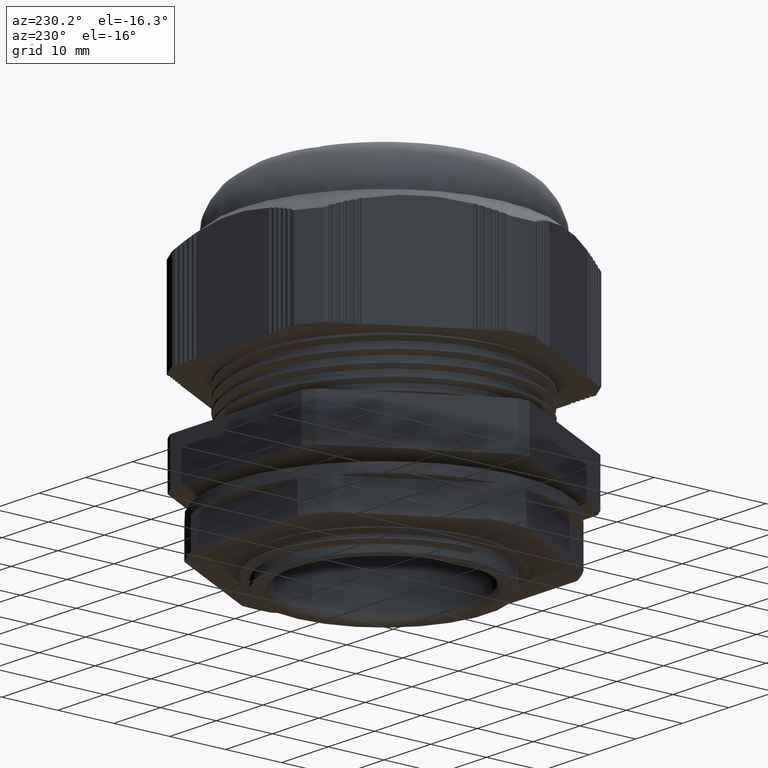
[diagram: clean part render]
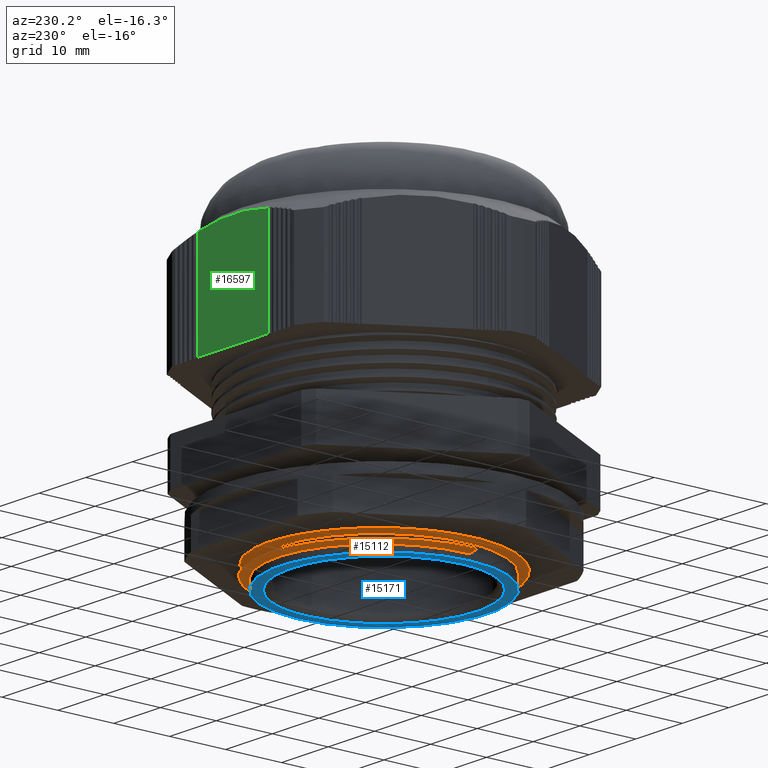
[diagram: same view with three faces highlighted in distinct colors, each labeled with its STEP entity id]
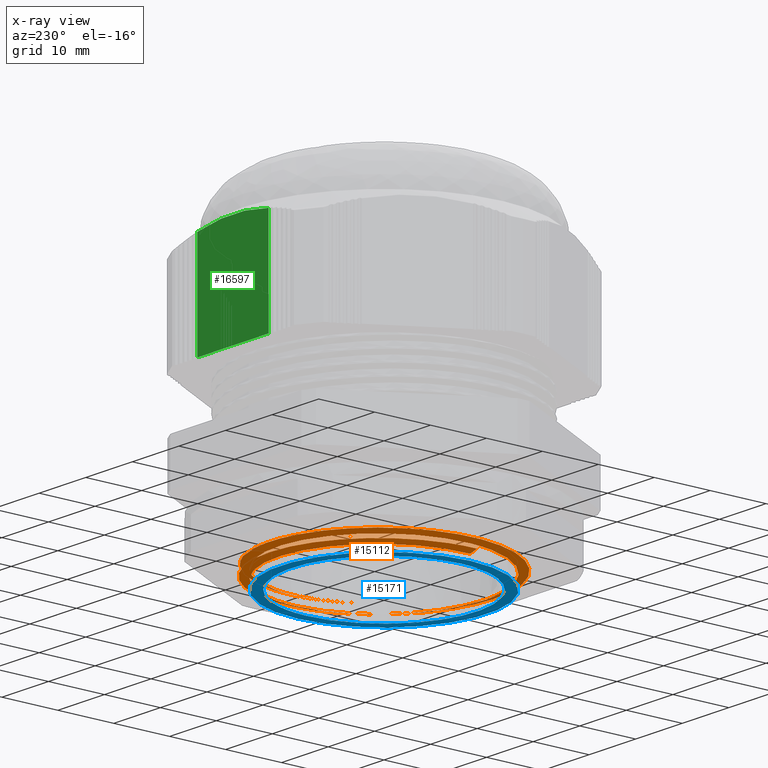
[diagram: x-ray of the same camera — body ghosted, the three highlighted faces saturated]
A machine part, auxiliary view with three faces highlighted in distinct colors.
The next image is the same camera in x-ray (body ghosted, the three faces saturated) — at least one of them is partly hidden behind the body in this view.
Their STEP definitions:

[orange] entity #15112 — the highlighted face is a freeform B-spline surface patch.
#3 = CARTESIAN_POINT ( 'NONE',  ( -20.00000000000000400, 8.284271247461902000, 5.995673788646678700 ) ) ;
#4 = CARTESIAN_POINT ( 'NONE',  ( -14.14213562373094700, -14.14213562373095500, 4.214423788646679500 ) ) ;
#5 = CARTESIAN_POINT ( 'NONE',  ( 8.284271247461900200, 20.00000000000000400, 4.870673788646679500 ) ) ;
#6 = CARTESIAN_POINT ( 'NONE',  ( 20.00000000000000400, 8.284271247461903800, 5.058173788646680400 ) ) ;
#7 = CARTESIAN_POINT ( 'NONE',  ( -14.14213562373095300, 14.14213562373094900, 6.089423788646679500 ) ) ;
#8 = CARTESIAN_POINT ( 'NONE',  ( -1.224646799147353300E-015, 20.00000000000000000, 6.276923788646679500 ) ) ;
#9 = CARTESIAN_POINT ( 'NONE',  ( 14.14213562373094900, 14.14213562373095300, 6.464423788646679500 ) ) ;
#10 = CARTESIAN_POINT ( 'NONE',  ( 3.673940397442059200E-015, -20.00000000000000000, 4.026923788646682200 ) ) ;
#11 = CARTESIAN_POINT ( 'NONE',  ( 20.00000000000000400, 8.284271247461903800, 6.558173788646680400 ) ) ;
#12 = CARTESIAN_POINT ( 'NONE',  ( 20.00000000000000000, 2.449293598294706500E-015, 5.151923788646679500 ) ) ;
#13 = CARTESIAN_POINT ( 'NONE',  ( 8.284271247461912700, -20.00000000000000400, 8.433173788646682200 ) ) ;
#14 = CARTESIAN_POINT ( 'NONE',  ( 3.673940397442059200E-015, -20.00000000000000000, 8.526923788646685800 ) ) ;
#15 = CARTESIAN_POINT ( 'NONE',  ( 8.284271247461912700, -20.00000000000000400, 5.433173788646678700 ) ) ;
#16 = CARTESIAN_POINT ( 'NONE',  ( -8.284271247461905600, -20.00000000000000400, 5.620673788646679500 ) ) ;
#17 = CARTESIAN_POINT ( 'NONE',  ( -20.00000000000000000, 0.0000000000000000000, 7.401923788646679500 ) ) ;
#18 = CARTESIAN_POINT ( 'NONE',  ( -20.00000000000000000, 0.0000000000000000000, 8.901923788646678700 ) ) ;
#19 = CARTESIAN_POINT ( 'NONE',  ( -14.14213562373094700, -14.14213562373095500, 8.714423788646680400 ) ) ;
#20 = CARTESIAN_POINT ( 'NONE',  ( 3.673940397442059200E-015, -20.00000000000000000, 7.026923788646682200 ) ) ;
#21 = CARTESIAN_POINT ( 'NONE',  ( 20.00000000000000000, 2.449293598294706500E-015, 6.651923788646679500 ) ) ;
#22 = CARTESIAN_POINT ( 'NONE',  ( -20.00000000000000400, -8.284271247461914500, 7.308173788646680400 ) ) ;
#23 = CARTESIAN_POINT ( 'NONE',  ( -20.00000000000000400, 8.284271247461902000, 8.995673788646678700 ) ) ;
#24 = CARTESIAN_POINT ( 'NONE',  ( -14.14213562373094700, -14.14213562373095500, 5.714423788646679500 ) ) ;
#25 = CARTESIAN_POINT ( 'NONE',  ( 20.00000000000000400, 8.284271247461903800, 9.558173788646678700 ) ) ;
#26 = CARTESIAN_POINT ( 'NONE',  ( 20.00000000000000000, 2.449293598294706500E-015, 9.651923788646678700 ) ) ;
#27 = CARTESIAN_POINT ( 'NONE',  ( -14.14213562373094700, -14.14213562373095500, 7.214423788646679500 ) ) ;
#28 = CARTESIAN_POINT ( 'NONE',  ( 14.14213562373095500, -14.14213562373094900, 9.839423788646678700 ) ) ;
#29 = CARTESIAN_POINT ( 'NONE',  ( -20.00000000000000400, 8.284271247461902000, 7.495673788646680400 ) ) ;
#30 = CARTESIAN_POINT ( 'NONE',  ( -20.00000000000000000, 0.0000000000000000000, 4.401923788646679500 ) ) ;
#31 = CARTESIAN_POINT ( 'NONE',  ( -20.00000000000000000, 0.0000000000000000000, 5.901923788646679500 ) ) ;
#32 = CARTESIAN_POINT ( 'NONE',  ( 8.284271247461900200, 20.00000000000000400, 6.370673788646679500 ) ) ;
#33 = CARTESIAN_POINT ( 'NONE',  ( 20.00000000000000400, -8.284271247461896700, 6.745673788646680400 ) ) ;
#34 = CARTESIAN_POINT ( 'NONE',  ( 20.00000000000000400, -8.284271247461896700, 5.245673788646679500 ) ) ;
#35 = CARTESIAN_POINT ( 'NONE',  ( -8.284271247461902000, 20.00000000000000400, 7.683173788646681300 ) ) ;
#36 = CARTESIAN_POINT ( 'NONE',  ( -8.284271247461905600, -20.00000000000000400, 4.120673788646678700 ) ) ;
#37 = CARTESIAN_POINT ( 'NONE',  ( -8.284271247461905600, -20.00000000000000400, 8.620673788646680400 ) ) ;
#38 = CARTESIAN_POINT ( 'NONE',  ( -20.00000000000000400, -8.284271247461914500, 4.308173788646681300 ) ) ;
#39 = CARTESIAN_POINT ( 'NONE',  ( -14.14213562373095300, 14.14213562373094900, 4.589423788646679500 ) ) ;
#40 = CARTESIAN_POINT ( 'NONE',  ( -14.14213562373095300, 14.14213562373094900, 9.089423788646678700 ) ) ;
#41 = CARTESIAN_POINT ( 'NONE',  ( 8.284271247461912700, -20.00000000000000400, 9.933173788646678700 ) ) ;
#42 = CARTESIAN_POINT ( 'NONE',  ( 3.673940397442059200E-015, -20.00000000000000000, 5.526923788646679500 ) ) ;
#43 = CARTESIAN_POINT ( 'NONE',  ( 20.00000000000000400, 8.284271247461903800, 8.058173788646682200 ) ) ;
#44 = CARTESIAN_POINT ( 'NONE',  ( 20.00000000000000000, 2.449293598294706500E-015, 8.151923788646678700 ) ) ;
#45 = CARTESIAN_POINT ( 'NONE',  ( -8.284271247461902000, 20.00000000000000400, 9.183173788646676900 ) ) ;
#46 = CARTESIAN_POINT ( 'NONE',  ( 8.284271247461912700, -20.00000000000000400, 6.933173788646680400 ) ) ;
#47 = CARTESIAN_POINT ( 'NONE',  ( 14.14213562373094900, 14.14213562373095300, 7.964423788646679500 ) ) ;
#48 = CARTESIAN_POINT ( 'NONE',  ( 20.00000000000000400, -8.284271247461896700, 8.245673788646678700 ) ) ;
#49 = CARTESIAN_POINT ( 'NONE',  ( 14.14213562373094900, 14.14213562373095300, 4.964423788646680400 ) ) ;
#50 = CARTESIAN_POINT ( 'NONE',  ( -20.00000000000000400, -8.284271247461914500, 5.808173788646679500 ) ) ;
#51 = CARTESIAN_POINT ( 'NONE',  ( -20.00000000000000400, 8.284271247461902000, 4.495673788646678700 ) ) ;
#52 = CARTESIAN_POINT ( 'NONE',  ( -8.284271247461905600, -20.00000000000000400, 7.120673788646683100 ) ) ;
#53 = CARTESIAN_POINT ( 'NONE',  ( 14.14213562373095500, -14.14213562373094900, 8.339423788646678700 ) ) ;
#54 = CARTESIAN_POINT ( 'NONE',  ( -8.284271247461902000, 20.00000000000000400, 6.183173788646681300 ) ) ;
#55 = CARTESIAN_POINT ( 'NONE',  ( -1.224646799147353300E-015, 20.00000000000000000, 7.776923788646679500 ) ) ;
#56 = CARTESIAN_POINT ( 'NONE',  ( -20.00000000000000400, -8.284271247461914500, 8.808173788646678700 ) ) ;
#57 = CARTESIAN_POINT ( 'NONE',  ( -8.284271247461902000, 20.00000000000000400, 4.683173788646679500 ) ) ;
#58 = CARTESIAN_POINT ( 'NONE',  ( -1.224646799147353300E-015, 20.00000000000000000, 4.776923788646679500 ) ) ;
#59 = CARTESIAN_POINT ( 'NONE',  ( 14.14213562373095500, -14.14213562373094900, 5.339423788646679500 ) ) ;
#60 = CARTESIAN_POINT ( 'NONE',  ( 14.14213562373095500, -14.14213562373094900, 6.839423788646679500 ) ) ;
#61 = CARTESIAN_POINT ( 'NONE',  ( -1.224646799147353300E-015, 20.00000000000000000, 9.276923788646678700 ) ) ;
#62 = CARTESIAN_POINT ( 'NONE',  ( 8.284271247461900200, 20.00000000000000400, 7.870673788646681300 ) ) ;
#63 = CARTESIAN_POINT ( 'NONE',  ( -14.14213562373095300, 14.14213562373094900, 7.589423788646679500 ) ) ;
#64 = CARTESIAN_POINT ( 'NONE',  ( 8.284271247461900200, 20.00000000000000400, 9.370673788646678700 ) ) ;
#65 = CARTESIAN_POINT ( 'NONE',  ( 14.14213562373094900, 14.14213562373095300, 9.464423788646678700 ) ) ;
#66 = CARTESIAN_POINT ( 'NONE',  ( 20.00000000000000400, -8.284271247461896700, 9.745673788646678700 ) ) ;
#604 = CARTESIAN_POINT ( 'NONE',  ( -18.50000000000000000, 0.0000000000000000000, 2.500000000000000000 ) ) ;
#620 = CARTESIAN_POINT ( 'NONE',  ( -18.49999999999999600, 0.0000000000000000000, 1.000000000000000400 ) ) ;
#685 = CARTESIAN_POINT ( 'NONE',  ( 18.50000000000000000, 7.547849486294601300E-012, 3.249999999999909800 ) ) ;
#710 = CARTESIAN_POINT ( 'NONE',  ( 18.50000000000000000, 2.265596578422603400E-015, 1.750000000000000000 ) ) ;
#794 = CARTESIAN_POINT ( 'NONE',  ( 15.68612446497232700, -9.807930427434556000, 3.384251592187931900 ) ) ;
#889 = CARTESIAN_POINT ( 'NONE',  ( 8.666006333860417900, 18.02499193402014700, 3.384251592187914600 ) ) ;
#914 = CARTESIAN_POINT ( 'NONE',  ( -20.00000000000000000, 0.0000000000000000000, 1.401923788646679800 ) ) ;
#1245 = CARTESIAN_POINT ( 'NONE',  ( 3.673940397442059200E-015, -20.00000000000000000, 10.02692378864667900 ) ) ;
#1254 = ORIENTED_EDGE ( 'NONE', *, *, #8288, .F. ) ;
#1289 = ORIENTED_EDGE ( 'NONE', *, *, #9871, .F. ) ;
#1305 = ORIENTED_EDGE ( 'NONE', *, *, #9901, .F. ) ;
#1342 = ORIENTED_EDGE ( 'NONE', *, *, #9877, .F. ) ;
#1345 = ORIENTED_EDGE ( 'NONE', *, *, #8329, .F. ) ;
#1429 = ORIENTED_EDGE ( 'NONE', *, *, #8280, .T. ) ;
#1454 = CARTESIAN_POINT ( 'NONE',  ( -8.284271247461905600, -20.00000000000000400, 10.12067378864667900 ) ) ;
#1465 = ORIENTED_EDGE ( 'NONE', *, *, #8311, .F. ) ;
#1527 = CARTESIAN_POINT ( 'NONE',  ( -14.14213562373094700, -14.14213562373095500, 10.21442378864667900 ) ) ;
#1529 = CARTESIAN_POINT ( 'NONE',  ( -20.00000000000000400, -8.284271247461914500, 10.30817378864668000 ) ) ;
#1545 = CARTESIAN_POINT ( 'NONE',  ( -20.00000000000000000, 0.0000000000000000000, 10.40192378864668400 ) ) ;
#1628 = CARTESIAN_POINT ( 'NONE',  ( -20.00000000000000400, 8.284271247461902000, 1.495673788646679500 ) ) ;
#1634 = CARTESIAN_POINT ( 'NONE',  ( -14.14213562373095300, 14.14213562373094900, 1.589423788646679300 ) ) ;
#1637 = CARTESIAN_POINT ( 'NONE',  ( 14.14213562373095500, -14.14213562373094900, 2.339423788646679500 ) ) ;
#1639 = CARTESIAN_POINT ( 'NONE',  ( -20.00000000000000400, 8.284271247461902000, 2.995673788646681300 ) ) ;
#1642 = CARTESIAN_POINT ( 'NONE',  ( 14.14213562373094900, 14.14213562373095300, 3.464423788646679500 ) ) ;
#1652 = CARTESIAN_POINT ( 'NONE',  ( 8.284271247461912700, -20.00000000000000400, 2.433173788646679500 ) ) ;
#1658 = CARTESIAN_POINT ( 'NONE',  ( 20.00000000000000400, 8.284271247461903800, 3.558173788646679100 ) ) ;
#1660 = CARTESIAN_POINT ( 'NONE',  ( 20.00000000000000400, -8.284271247461896700, 3.745673788646679100 ) ) ;
#1662 = CARTESIAN_POINT ( 'NONE',  ( 8.284271247461900200, 20.00000000000000400, 3.370673788646679500 ) ) ;
#1665 = CARTESIAN_POINT ( 'NONE',  ( -8.284271247461905600, -20.00000000000000400, 2.620673788646679500 ) ) ;
#1670 = CARTESIAN_POINT ( 'NONE',  ( -8.284271247461902000, 20.00000000000000400, 1.683173788646679800 ) ) ;
#1676 = CARTESIAN_POINT ( 'NONE',  ( 14.14213562373095500, -14.14213562373094900, 3.839423788646679500 ) ) ;
#1678 = CARTESIAN_POINT ( 'NONE',  ( 20.00000000000000400, 8.284271247461903800, 2.058173788646679500 ) ) ;
#1686 = FACE_OUTER_BOUND ( 'NONE', #16886, .T. ) ;
#1690 = CARTESIAN_POINT ( 'NONE',  ( -20.00000000000000000, 0.0000000000000000000, 1.401923788646679800 ) ) ;
#1692 = CARTESIAN_POINT ( 'NONE',  ( 3.673940397442059200E-015, -20.00000000000000000, 2.526923788646679500 ) ) ;
#1694 = CARTESIAN_POINT ( 'NONE',  ( -14.14213562373094700, -14.14213562373095500, 2.714423788646679500 ) ) ;
#1695 = CARTESIAN_POINT ( 'NONE',  ( -14.14213562373095300, 14.14213562373094900, 3.089423788646679100 ) ) ;
#1699 = CARTESIAN_POINT ( 'NONE',  ( 14.14213562373094900, 14.14213562373095300, 1.964423788646679500 ) ) ;
#1705 = CARTESIAN_POINT ( 'NONE',  ( -20.00000000000000400, -8.284271247461914500, 2.808173788646679500 ) ) ;
#1711 = CARTESIAN_POINT ( 'NONE',  ( -8.284271247461902000, 20.00000000000000400, 3.183173788646679100 ) ) ;
#1713 = CARTESIAN_POINT ( 'NONE',  ( -20.00000000000000000, 0.0000000000000000000, 2.901923788646679500 ) ) ;
#1714 = CARTESIAN_POINT ( 'NONE',  ( -1.224646799147353300E-015, 20.00000000000000000, 3.276923788646680900 ) ) ;
#1716 = CARTESIAN_POINT ( 'NONE',  ( -1.224646799147353300E-015, 20.00000000000000000, 1.776923788646679300 ) ) ;
#1721 = CARTESIAN_POINT ( 'NONE',  ( 20.00000000000000000, 2.449293598294706500E-015, 2.151923788646679100 ) ) ;
#1722 = CARTESIAN_POINT ( 'NONE',  ( 20.00000000000000000, 2.449293598294706500E-015, 3.651923788646679500 ) ) ;
#1724 = CARTESIAN_POINT ( 'NONE',  ( 8.284271247461912700, -20.00000000000000400, 3.933173788646679100 ) ) ;
#1732 = CARTESIAN_POINT ( 'NONE',  ( 8.284271247461900200, 20.00000000000000400, 1.870673788646680400 ) ) ;
#1733 = CARTESIAN_POINT ( 'NONE',  ( 20.00000000000000400, -8.284271247461896700, 2.245673788646679100 ) ) ;
#1825 = CARTESIAN_POINT ( 'NONE',  ( -8.284271247461902000, 20.00000000000000400, 12.18317378864668200 ) ) ;
#1826 = CARTESIAN_POINT ( 'NONE',  ( -1.224646799147353300E-015, 20.00000000000000000, 12.27692378864668000 ) ) ;
#1827 = CARTESIAN_POINT ( 'NONE',  ( 14.14213562373094900, 14.14213562373095300, 12.46442378864668400 ) ) ;
#1828 = CARTESIAN_POINT ( 'NONE',  ( 20.00000000000000000, 2.449293598294706500E-015, 12.65192378864667900 ) ) ;
#1829 = CARTESIAN_POINT ( 'NONE',  ( 8.284271247461900200, 20.00000000000000400, 10.87067378864668000 ) ) ;
#1830 = CARTESIAN_POINT ( 'NONE',  ( -7.662950903902259200, 18.50000000000001800, 2.781250000000000000 ) ) ;
#1831 = CARTESIAN_POINT ( 'NONE',  ( 14.14213562373095500, -14.14213562373094900, 11.33942378864668000 ) ) ;
#1832 = CARTESIAN_POINT ( 'NONE',  ( -18.50000000000001800, 7.662950903902258300, 1.093750000000000200 ) ) ;
#1833 = CARTESIAN_POINT ( 'NONE',  ( 13.08147545195112800, 13.08147545195113000, 1.562500000000000000 ) ) ;
#1834 = CARTESIAN_POINT ( 'NONE',  ( 7.662950903902271600, -18.50000000000001400, 3.531250000000000000 ) ) ;
#1835 = CARTESIAN_POINT ( 'NONE',  ( 13.08147545195112800, 13.08147545195113000, 3.062500000000000000 ) ) ;
#1836 = CARTESIAN_POINT ( 'NONE',  ( 3.398394867633906300E-015, -18.50000000000000000, 3.625000000000000000 ) ) ;
#1837 = CARTESIAN_POINT ( 'NONE',  ( 13.08147545195113200, -13.08147545195112800, 1.937500000000000000 ) ) ;
#1838 = CARTESIAN_POINT ( 'NONE',  ( -7.662950903902262700, -18.50000000000001400, 3.718750000000000400 ) ) ;
#1839 = CARTESIAN_POINT ( 'NONE',  ( -13.08147545195112500, -13.08147545195113200, 3.812500000000000000 ) ) ;
#1840 = CARTESIAN_POINT ( 'NONE',  ( 3.673940397442059200E-015, -20.00000000000000000, 11.52692378864668000 ) ) ;
#1841 = CARTESIAN_POINT ( 'NONE',  ( -18.50000000000000000, 0.0000000000000000000, 4.000000000000000000 ) ) ;
#1842 = CARTESIAN_POINT ( 'NONE',  ( -18.50000000000001800, 7.662950903902258300, 4.093750000000000000 ) ) ;
#1843 = CARTESIAN_POINT ( 'NONE',  ( -13.08147545195113000, 13.08147545195112800, 4.187500000000000000 ) ) ;
#1844 = CARTESIAN_POINT ( 'NONE',  ( -7.662950903902262700, -18.50000000000001400, 2.218750000000000400 ) ) ;
#1845 = CARTESIAN_POINT ( 'NONE',  ( -7.662950903902259200, 18.50000000000001800, 4.281250000000001800 ) ) ;
#1846 = CARTESIAN_POINT ( 'NONE',  ( -20.00000000000000000, 0.0000000000000000000, 11.90192378864668000 ) ) ;
#1847 = CARTESIAN_POINT ( 'NONE',  ( -7.662950903902259200, 18.50000000000001800, 1.281250000000000200 ) ) ;
#1848 = CARTESIAN_POINT ( 'NONE',  ( 18.50000000000001800, 7.662950903902261000, 3.156250000000000400 ) ) ;
#1849 = CARTESIAN_POINT ( 'NONE',  ( 18.50000000000000000, 2.265596578422603400E-015, 3.250000000000001800 ) ) ;
#1850 = CARTESIAN_POINT ( 'NONE',  ( -13.08147545195113000, 13.08147545195112800, 2.687500000000000000 ) ) ;
#1851 = CARTESIAN_POINT ( 'NONE',  ( -18.50000000000001400, -7.662950903902271600, 3.906250000000000000 ) ) ;
#1852 = CARTESIAN_POINT ( 'NONE',  ( -14.14213562373095300, 14.14213562373094900, 12.08942378864668000 ) ) ;
#1853 = CARTESIAN_POINT ( 'NONE',  ( 7.662950903902258300, 18.50000000000001800, 4.468750000000003600 ) ) ;
#1854 = CARTESIAN_POINT ( 'NONE',  ( 20.00000000000000400, 8.284271247461903800, 12.55817378864668200 ) ) ;
#1855 = CARTESIAN_POINT ( 'NONE',  ( 13.08147545195112800, 13.08147545195113000, 4.562500000000000900 ) ) ;
#1856 = CARTESIAN_POINT ( 'NONE',  ( 20.00000000000000400, -8.284271247461896700, 11.24567378864668000 ) ) ;
#1857 = CARTESIAN_POINT ( 'NONE',  ( -14.14213562373094700, -14.14213562373095500, 11.71442378864668000 ) ) ;
#1858 = CARTESIAN_POINT ( 'NONE',  ( 18.50000000000001800, 7.662950903902261000, 1.656250000000000200 ) ) ;
#1859 = CARTESIAN_POINT ( 'NONE',  ( 18.50000000000001800, 7.662950903902261000, 4.656250000000000000 ) ) ;
#1860 = CARTESIAN_POINT ( 'NONE',  ( 3.398394867633906300E-015, -18.50000000000000000, 2.125000000000000000 ) ) ;
#1861 = CARTESIAN_POINT ( 'NONE',  ( -1.132798289211301700E-015, 18.50000000000000000, 4.375000000000000000 ) ) ;
#1862 = CARTESIAN_POINT ( 'NONE',  ( 18.50000000000000000, 2.265596578422603400E-015, 4.750000000000000000 ) ) ;
#1863 = CARTESIAN_POINT ( 'NONE',  ( 20.00000000000000400, 8.284271247461903800, 11.05817378864668000 ) ) ;
#1864 = CARTESIAN_POINT ( 'NONE',  ( 18.50000000000001800, -7.662950903902258300, 4.843750000000000000 ) ) ;
#1865 = CARTESIAN_POINT ( 'NONE',  ( 13.08147545195113200, -13.08147545195112800, 4.937500000000000000 ) ) ;
#1866 = CARTESIAN_POINT ( 'NONE',  ( -1.132798289211301700E-015, 18.50000000000000000, 1.375000000000000000 ) ) ;
#1867 = CARTESIAN_POINT ( 'NONE',  ( -13.08147545195112500, -13.08147545195113200, 2.312500000000000400 ) ) ;
#1868 = CARTESIAN_POINT ( 'NONE',  ( -18.50000000000001400, -7.662950903902271600, 2.406250000000000400 ) ) ;
#1869 = CARTESIAN_POINT ( 'NONE',  ( -18.50000000000000000, 0.0000000000000000000, 2.500000000000000000 ) ) ;
#1870 = CARTESIAN_POINT ( 'NONE',  ( 7.662950903902258300, 18.50000000000001800, 2.968750000000000000 ) ) ;
#1871 = CARTESIAN_POINT ( 'NONE',  ( -20.00000000000000400, -8.284271247461914500, 11.80817378864668200 ) ) ;
#1872 = CARTESIAN_POINT ( 'NONE',  ( -20.00000000000000400, 8.284271247461902000, 11.99567378864668000 ) ) ;
#1873 = CARTESIAN_POINT ( 'NONE',  ( 18.50000000000000000, 2.265596578422603400E-015, 1.750000000000000000 ) ) ;
#1874 = CARTESIAN_POINT ( 'NONE',  ( -8.284271247461905600, -20.00000000000000400, 11.62067378864668000 ) ) ;
#1875 = CARTESIAN_POINT ( 'NONE',  ( 7.662950903902271600, -18.50000000000001400, 2.031250000000000000 ) ) ;
#1876 = CARTESIAN_POINT ( 'NONE',  ( 14.14213562373094900, 14.14213562373095300, 10.96442378864668000 ) ) ;
#1877 = CARTESIAN_POINT ( 'NONE',  ( 8.284271247461900200, 20.00000000000000400, 12.37067378864668000 ) ) ;
#1878 = CARTESIAN_POINT ( 'NONE',  ( -18.50000000000000000, 0.0000000000000000000, 1.000000000000000000 ) ) ;
#1879 = CARTESIAN_POINT ( 'NONE',  ( 8.284271247461912700, -20.00000000000000400, 11.43317378864668000 ) ) ;
#1880 = CARTESIAN_POINT ( 'NONE',  ( 18.50000000000001800, -7.662950903902258300, 1.843749999999999800 ) ) ;
#1881 = CARTESIAN_POINT ( 'NONE',  ( -1.132798289211301700E-015, 18.50000000000000000, 2.875000000000000000 ) ) ;
#1882 = CARTESIAN_POINT ( 'NONE',  ( -18.50000000000001800, 7.662950903902258300, 2.593750000000000900 ) ) ;
#1883 = CARTESIAN_POINT ( 'NONE',  ( -1.224646799147353300E-015, 20.00000000000000000, 10.77692378864668000 ) ) ;
#1884 = CARTESIAN_POINT ( 'NONE',  ( -13.08147545195113000, 13.08147545195112800, 1.187500000000000000 ) ) ;
#1885 = CARTESIAN_POINT ( 'NONE',  ( 18.50000000000001800, -7.662950903902258300, 3.343750000000000400 ) ) ;
#1886 = CARTESIAN_POINT ( 'NONE',  ( 20.00000000000000000, 2.449293598294706500E-015, 11.15192378864668000 ) ) ;
#1887 = CARTESIAN_POINT ( 'NONE',  ( 7.662950903902258300, 18.50000000000001800, 1.468750000000000200 ) ) ;
#1888 = CARTESIAN_POINT ( 'NONE',  ( 13.08147545195113200, -13.08147545195112800, 3.437500000000000000 ) ) ;
#1889 = CARTESIAN_POINT ( 'NONE',  ( -18.50000000000001800, 7.662950903902258300, 10.09374999999999600 ) ) ;
#1890 = CARTESIAN_POINT ( 'NONE',  ( -13.08147545195113000, 13.08147545195112800, 10.18749999999999800 ) ) ;
#1891 = CARTESIAN_POINT ( 'NONE',  ( 18.50000000000000000, 2.265596578422603400E-015, 6.250000000000000000 ) ) ;
#1892 = CARTESIAN_POINT ( 'NONE',  ( -18.50000000000001400, -7.662950903902271600, 8.406250000000001800 ) ) ;
#1893 = CARTESIAN_POINT ( 'NONE',  ( -1.132798289211301700E-015, 18.50000000000000000, 8.875000000000003600 ) ) ;
#1894 = CARTESIAN_POINT ( 'NONE',  ( 7.662950903902258300, 18.50000000000001800, 8.968750000000000000 ) ) ;
#1895 = CARTESIAN_POINT ( 'NONE',  ( -18.50000000000001400, -7.662950903902271600, 5.406250000000000900 ) ) ;
#1896 = CARTESIAN_POINT ( 'NONE',  ( -7.662950903902259200, 18.50000000000001800, 10.28124999999999800 ) ) ;
#1897 = CARTESIAN_POINT ( 'NONE',  ( 3.398394867633906300E-015, -18.50000000000000000, 6.625000000000000000 ) ) ;
#1898 = CARTESIAN_POINT ( 'NONE',  ( 13.08147545195112800, 13.08147545195113000, 6.062500000000000000 ) ) ;
#1899 = CARTESIAN_POINT ( 'NONE',  ( 7.662950903902258300, 18.50000000000001800, 10.46874999999999800 ) ) ;
#1900 = CARTESIAN_POINT ( 'NONE',  ( 18.50000000000001800, 7.662950903902261000, 9.156250000000000000 ) ) ;
#1901 = CARTESIAN_POINT ( 'NONE',  ( -7.662950903902262700, -18.50000000000001400, 6.718749999999999100 ) ) ;
#1902 = CARTESIAN_POINT ( 'NONE',  ( 18.50000000000001800, 7.662950903902261000, 7.656249999999999100 ) ) ;
#1903 = CARTESIAN_POINT ( 'NONE',  ( -18.50000000000001800, 7.662950903902258300, 8.593750000000000000 ) ) ;
#1904 = CARTESIAN_POINT ( 'NONE',  ( -18.50000000000001800, 7.662950903902258300, 5.593749999999999100 ) ) ;
#1905 = CARTESIAN_POINT ( 'NONE',  ( 13.08147545195112800, 13.08147545195113000, 10.56249999999999800 ) ) ;
#1906 = CARTESIAN_POINT ( 'NONE',  ( 7.662950903902271600, -18.50000000000001400, 8.031250000000000000 ) ) ;
#1907 = CARTESIAN_POINT ( 'NONE',  ( 18.50000000000001800, 7.662950903902261000, 10.65625000000000000 ) ) ;
#1908 = CARTESIAN_POINT ( 'NONE',  ( -13.08147545195113000, 13.08147545195112800, 7.187500000000000000 ) ) ;
#1909 = CARTESIAN_POINT ( 'NONE',  ( -7.662950903902262700, -18.50000000000001400, 9.718750000000007100 ) ) ;
#1910 = CARTESIAN_POINT ( 'NONE',  ( -1.132798289211301700E-015, 18.50000000000000000, 7.375000000000001800 ) ) ;
#1911 = CARTESIAN_POINT ( 'NONE',  ( -13.08147545195112500, -13.08147545195113200, 6.812500000000000000 ) ) ;
#1912 = CARTESIAN_POINT ( 'NONE',  ( 18.50000000000000000, 2.265596578422603400E-015, 10.75000000000000000 ) ) ;
#1913 = CARTESIAN_POINT ( 'NONE',  ( 13.08147545195113200, -13.08147545195112800, 6.437500000000003600 ) ) ;
#1914 = CARTESIAN_POINT ( 'NONE',  ( -1.132798289211301700E-015, 18.50000000000000000, 10.37499999999999800 ) ) ;
#1915 = CARTESIAN_POINT ( 'NONE',  ( 18.50000000000001800, -7.662950903902258300, 10.84374999999999800 ) ) ;
#1916 = CARTESIAN_POINT ( 'NONE',  ( -13.08147545195112500, -13.08147545195113200, 9.812500000000001800 ) ) ;
#1917 = CARTESIAN_POINT ( 'NONE',  ( 13.08147545195113200, -13.08147545195112800, 10.93750000000000500 ) ) ;
#1918 = CARTESIAN_POINT ( 'NONE',  ( -18.50000000000000000, 0.0000000000000000000, 8.500000000000000000 ) ) ;
#1919 = CARTESIAN_POINT ( 'NONE',  ( -7.662950903902259200, 18.50000000000001800, 7.281250000000000000 ) ) ;
#1920 = CARTESIAN_POINT ( 'NONE',  ( -13.08147545195112500, -13.08147545195113200, 5.312500000000000000 ) ) ;
#1921 = CARTESIAN_POINT ( 'NONE',  ( -7.662950903902259200, 18.50000000000001800, 5.781249999999999100 ) ) ;
#1922 = CARTESIAN_POINT ( 'NONE',  ( 18.50000000000001800, -7.662950903902258300, 6.343750000000000900 ) ) ;
#1923 = CARTESIAN_POINT ( 'NONE',  ( 13.08147545195113200, -13.08147545195112800, 7.937500000000000000 ) ) ;
#1924 = CARTESIAN_POINT ( 'NONE',  ( 18.50000000000001800, 7.662950903902261000, 6.156250000000000000 ) ) ;
#1925 = CARTESIAN_POINT ( 'NONE',  ( -18.50000000000001400, -7.662950903902271600, 9.906250000000001800 ) ) ;
#1926 = CARTESIAN_POINT ( 'NONE',  ( 7.662950903902271600, -18.50000000000001400, 9.531250000000001800 ) ) ;
#1927 = CARTESIAN_POINT ( 'NONE',  ( 3.398394867633906300E-015, -18.50000000000000000, 5.125000000000000000 ) ) ;
#1928 = CARTESIAN_POINT ( 'NONE',  ( -7.662950903902259200, 18.50000000000001800, 8.781250000000007100 ) ) ;
#1929 = CARTESIAN_POINT ( 'NONE',  ( 7.662950903902271600, -18.50000000000001400, 6.531250000000000000 ) ) ;
#1930 = CARTESIAN_POINT ( 'NONE',  ( 13.08147545195113200, -13.08147545195112800, 9.437500000000001800 ) ) ;
#1931 = CARTESIAN_POINT ( 'NONE',  ( 18.50000000000000000, 2.265596578422603400E-015, 9.250000000000001800 ) ) ;
#1932 = CARTESIAN_POINT ( 'NONE',  ( 3.398394867633906300E-015, -18.50000000000000000, 9.625000000000001800 ) ) ;
#1933 = CARTESIAN_POINT ( 'NONE',  ( -18.50000000000000000, 0.0000000000000000000, 10.00000000000000200 ) ) ;
#1934 = CARTESIAN_POINT ( 'NONE',  ( 18.50000000000000000, 2.265596578422603400E-015, 7.750000000000000000 ) ) ;
#1935 = CARTESIAN_POINT ( 'NONE',  ( -1.132798289211301700E-015, 18.50000000000000000, 5.875000000000000000 ) ) ;
#1936 = CARTESIAN_POINT ( 'NONE',  ( -18.50000000000000000, 0.0000000000000000000, 7.000000000000000000 ) ) ;
#1937 = CARTESIAN_POINT ( 'NONE',  ( 3.398394867633906300E-015, -18.50000000000000000, 8.125000000000000000 ) ) ;
#1938 = CARTESIAN_POINT ( 'NONE',  ( -13.08147545195113000, 13.08147545195112800, 5.687500000000000000 ) ) ;
#1939 = CARTESIAN_POINT ( 'NONE',  ( -13.08147545195113000, 13.08147545195112800, 8.687500000000000000 ) ) ;
#1940 = CARTESIAN_POINT ( 'NONE',  ( 7.662950903902271600, -18.50000000000001400, 5.031250000000000000 ) ) ;
#1941 = CARTESIAN_POINT ( 'NONE',  ( -18.50000000000001800, 7.662950903902258300, 7.093750000000000000 ) ) ;
#1942 = CARTESIAN_POINT ( 'NONE',  ( 18.50000000000001800, -7.662950903902258300, 7.843750000000000000 ) ) ;
#1943 = CARTESIAN_POINT ( 'NONE',  ( -18.50000000000000000, 0.0000000000000000000, 5.500000000000003600 ) ) ;
#1944 = CARTESIAN_POINT ( 'NONE',  ( -18.50000000000001400, -7.662950903902271600, 6.906250000000000000 ) ) ;
#1945 = CARTESIAN_POINT ( 'NONE',  ( -7.662950903902262700, -18.50000000000001400, 8.218750000000001800 ) ) ;
#1946 = CARTESIAN_POINT ( 'NONE',  ( -13.08147545195112500, -13.08147545195113200, 8.312500000000000000 ) ) ;
#1947 = CARTESIAN_POINT ( 'NONE',  ( 13.08147545195112800, 13.08147545195113000, 9.062500000000001800 ) ) ;
#1948 = CARTESIAN_POINT ( 'NONE',  ( 18.50000000000001800, -7.662950903902258300, 9.343750000000001800 ) ) ;
#1949 = CARTESIAN_POINT ( 'NONE',  ( 13.08147545195112800, 13.08147545195113000, 7.562500000000000000 ) ) ;
#1950 = CARTESIAN_POINT ( 'NONE',  ( -7.662950903902262700, -18.50000000000001400, 5.218750000000000000 ) ) ;
#1951 = CARTESIAN_POINT ( 'NONE',  ( 7.662950903902258300, 18.50000000000001800, 5.968750000000000000 ) ) ;
#1952 = CARTESIAN_POINT ( 'NONE',  ( 7.662950903902258300, 18.50000000000001800, 7.468750000000001800 ) ) ;
#1954 = CARTESIAN_POINT ( 'NONE',  ( 7.662950903902271600, -18.50000000000001400, 11.03124999999999800 ) ) ;
#1958 = CARTESIAN_POINT ( 'NONE',  ( -13.08147545195113000, 13.08147545195112800, 11.68750000000000000 ) ) ;
#1965 = CARTESIAN_POINT ( 'NONE',  ( 3.398394867633906300E-015, -18.50000000000000000, 11.12500000000000000 ) ) ;
#1969 = CARTESIAN_POINT ( 'NONE',  ( 18.50000000000001800, 7.662950903902261000, 12.15625000000000000 ) ) ;
#1973 = CARTESIAN_POINT ( 'NONE',  ( -7.662950903902262700, -18.50000000000001400, 11.21874999999999800 ) ) ;
#1975 = CARTESIAN_POINT ( 'NONE',  ( 18.50000000000000000, 2.265596578422603400E-015, 12.25000000000000000 ) ) ;
#1982 = CARTESIAN_POINT ( 'NONE',  ( 13.08147545195112800, 13.08147545195113000, 12.06250000000000000 ) ) ;
#1986 = CARTESIAN_POINT ( 'NONE',  ( -1.132798289211301700E-015, 18.50000000000000000, 11.87500000000000000 ) ) ;
#1992 = CARTESIAN_POINT ( 'NONE',  ( -18.50000000000001400, -7.662950903902271600, 11.40625000000000000 ) ) ;
#1993 = CARTESIAN_POINT ( 'NONE',  ( 7.662950903902258300, 18.50000000000001800, 11.96875000000000000 ) ) ;
#1997 = CARTESIAN_POINT ( 'NONE',  ( -7.662950903902259200, 18.50000000000001800, 11.78125000000000000 ) ) ;
#2003 = CARTESIAN_POINT ( 'NONE',  ( -18.50000000000001800, 7.662950903902258300, 11.59375000000000000 ) ) ;
#2005 = CARTESIAN_POINT ( 'NONE',  ( -18.50000000000000000, 0.0000000000000000000, 11.50000000000000000 ) ) ;
#2009 = CARTESIAN_POINT ( 'NONE',  ( -13.08147545195112500, -13.08147545195113200, 11.31250000000000000 ) ) ;
#8280 = EDGE_CURVE ( 'NONE', #10729, #10683, #11476, .T. ) ;
#8288 = EDGE_CURVE ( 'NONE', #10729, #10726, #15352, .T. ) ;
#8311 = EDGE_CURVE ( 'NONE', #10532, #10683, #15344, .T. ) ;
#8329 = EDGE_CURVE ( 'NONE', #10726, #10496, #20599, .T. ) ;
#8460 =( BOUNDED_CURVE ( )  B_SPLINE_CURVE ( 2, ( #23643, #23693, #23676, #23683, #23704, #23694, #23696, #23712, #23681 ),
 .UNSPECIFIED., .F., .T. ) 
 B_SPLINE_CURVE_WITH_KNOTS ( ( 3, 2, 2, 2, 3 ),
 ( 0.05839811024833385000, 0.07299763678952667100, 0.08759716333071948500, 0.1021966898719123000, 0.1167962164131051300 ),
 .UNSPECIFIED. ) 
 CURVE ( )  GEOMETRIC_REPRESENTATION_ITEM ( )  RATIONAL_B_SPLINE_CURVE ( ( 1.000000000000000000, 0.9238795325112867400, 1.000000000000000000, 0.9238795325112867400, 1.000000000000000000, 0.9238795325112867400, 1.000000000000000000, 0.9238795325113272600, 0.9999999999999594800 ) ) 
 REPRESENTATION_ITEM ( '' )  );
#8462 =( BOUNDED_SURFACE ( )  B_SPLINE_SURFACE ( 1, 2, ( 
 ( #1690, #1628, #1634, #1670, #1716, #1732, #1699, #1678, #1721, #1733, #1637, #1652, #1692, #1665, #1694, #1705, #1713, #1639, #1695, #1711, #1714, #1662, #1642, #1658, #1722, #1660, #1676, #1724, #10, #36, #4, #38, #30, #51, #39, #57, #58, #5, #49, #6, #12, #34, #59, #15, #42, #16, #24, #50, #31, #3, #7, #54, #8, #32, #9, #11, #21, #33, #60, #46, #20, #52, #27, #22, #17, #29, #63, #35, #55, #62, #47, #43, #44, #48, #53, #13, #14, #37, #19, #56, #18, #23, #40, #45, #61, #64, #65, #25, #26, #66, #28, #41, #1245, #1454, #1527, #1529, #1545, #23957, #23969, #23982, #1883, #1829, #1876, #1863, #1886, #1856, #1831, #1879, #1840, #1874, #1857, #1871, #1846, #1872, #1852, #1825, #1826, #1877, #1827, #1854, #1828 ),
 ( #1878, #1832, #1884, #1847, #1866, #1887, #1833, #1858, #1873, #1880, #1837, #1875, #1860, #1844, #1867, #1868, #1869, #1882, #1850, #1830, #1881, #1870, #1835, #1848, #1849, #1885, #1888, #1834, #1836, #1838, #1839, #1851, #1841, #1842, #1843, #1845, #1861, #1853, #1855, #1859, #1862, #1864, #1865, #1940, #1927, #1950, #1920, #1895, #1943, #1904, #1938, #1921, #1935, #1951, #1898, #1924, #1891, #1922, #1913, #1929, #1897, #1901, #1911, #1944, #1936, #1941, #1908, #1919, #1910, #1952, #1949, #1902, #1934, #1942, #1923, #1906, #1937, #1945, #1946, #1892, #1918, #1903, #1939, #1928, #1893, #1894, #1947, #1900, #1931, #1948, #1930, #1926, #1932, #1909, #1916, #1925, #1933, #1889, #1890, #1896, #1914, #1899, #1905, #1907, #1912, #1915, #1917, #1954, #1965, #1973, #2009, #1992, #2005, #2003, #1958, #1997, #1986, #1993, #1982, #1969, #1975 ) ),
 .UNSPECIFIED., .F., .F., .F. ) 
 B_SPLINE_SURFACE_WITH_KNOTS ( ( 2, 2 ),
 ( 3, 2, 2, 2, 2, 2, 2, 2, 2, 2, 2, 2, 2, 2, 2, 2, 2, 2, 2, 2, 2, 2, 2, 2, 2, 2, 2, 2, 2, 2, 2, 2, 2, 2, 2, 2, 2, 2, 2, 2, 2, 2, 2, 2, 2, 2, 2, 2, 2, 2, 2, 2, 2, 2, 2, 2, 2, 2, 2, 2, 3 ),
 ( 0.0000000000000000000, 1.000000000000000000 ),
 ( 0.0000000000000000000, 0.01562500000000000000, 0.03125000000000000000, 0.04687500000000000000, 0.06250000000000000000, 0.07812500000000000000, 0.09375000000000000000, 0.1093750000000000000, 0.1250000000000000000, 0.1406250000000000000, 0.1562500000000000000, 0.1718750000000000000, 0.1875000000000000000, 0.2031250000000000000, 0.2187500000000000000, 0.2343750000000000000, 0.2500000000000000000, 0.2656250000000000000, 0.2812500000000000000, 0.2968750000000000000, 0.3125000000000000000, 0.3281250000000000000, 0.3437500000000000000, 0.3593750000000000000, 0.3750000000000000000, 0.3906250000000000000, 0.4062500000000000000, 0.4218750000000000000, 0.4375000000000000000, 0.4531250000000000000, 0.4687500000000000000, 0.4843750000000000000, 0.5000000000000000000, 0.5156250000000000000, 0.5312500000000000000, 0.5468750000000000000, 0.5625000000000000000, 0.5781250000000000000, 0.5937500000000000000, 0.6093750000000000000, 0.6250000000000000000, 0.6406250000000000000, 0.6562500000000000000, 0.6718750000000000000, 0.6875000000000000000, 0.7031250000000000000, 0.7187500000000000000, 0.7343750000000000000, 0.7500000000000000000, 0.7656250000000000000, 0.7812500000000000000, 0.7968750000000000000, 0.8125000000000000000, 0.8281250000000000000, 0.8437500000000000000, 0.8593750000000000000, 0.8750000000000000000, 0.8906250000000000000, 0.9062500000000000000, 0.9218750000000000000, 0.9375000000000000000 ),
 .UNSPECIFIED. ) 
 GEOMETRIC_REPRESENTATION_ITEM ( )  RATIONAL_B_SPLINE_SURFACE ( (
 ( 1.000000000000000000, 0.9238795325112867400, 1.000000000000000000, 0.9238795325112867400, 1.000000000000000000, 0.9238795325112867400, 1.000000000000000000, 0.9238795325112867400, 1.000000000000000000, 0.9238795325112867400, 1.000000000000000000, 0.9238795325112867400, 1.000000000000000000, 0.9238795325112867400, 1.000000000000000000, 0.9238795325112867400, 1.000000000000000000, 0.9238795325112867400, 1.000000000000000000, 0.9238795325112867400, 1.000000000000000000, 0.9238795325112867400, 1.000000000000000000, 0.9238795325112867400, 1.000000000000000000, 0.9238795325112867400, 1.000000000000000000, 0.9238795325112867400, 1.000000000000000000, 0.9238795325112867400, 1.000000000000000000, 0.9238795325112867400, 1.000000000000000000, 0.9238795325112867400, 1.000000000000000000, 0.9238795325112867400, 1.000000000000000000, 0.9238795325112867400, 1.000000000000000000, 0.9238795325112867400, 1.000000000000000000, 0.9238795325112867400, 1.000000000000000000, 0.9238795325112867400, 1.000000000000000000, 0.9238795325112867400, 1.000000000000000000, 0.9238795325112867400, 1.000000000000000000, 0.9238795325112867400, 1.000000000000000000, 0.9238795325112867400, 1.000000000000000000, 0.9238795325112867400, 1.000000000000000000, 0.9238795325112867400, 1.000000000000000000, 0.9238795325112867400, 1.000000000000000000, 0.9238795325112867400, 1.000000000000000000, 0.9238795325112867400, 1.000000000000000000, 0.9238795325112867400, 1.000000000000000000, 0.9238795325112867400, 1.000000000000000000, 0.9238795325112867400, 1.000000000000000000, 0.9238795325112867400, 1.000000000000000000, 0.9238795325112867400, 1.000000000000000000, 0.9238795325112867400, 1.000000000000000000, 0.9238795325112867400, 1.000000000000000000, 0.9238795325112867400, 1.000000000000000000, 0.9238795325112867400, 1.000000000000000000, 0.9238795325112867400, 1.000000000000000000, 0.9238795325112867400, 1.000000000000000000, 0.9238795325112867400, 1.000000000000000000, 0.9238795325112867400, 1.000000000000000000, 0.9238795325112867400, 1.000000000000000000, 0.9238795325112867400, 1.000000000000000000, 0.9238795325112867400, 1.000000000000000000, 0.9238795325112867400, 1.000000000000000000, 0.9238795325112867400, 1.000000000000000000, 0.9238795325112867400, 1.000000000000000000, 0.9238795325112867400, 1.000000000000000000, 0.9238795325112867400, 1.000000000000000000, 0.9238795325112867400, 1.000000000000000000, 0.9238795325112867400, 1.000000000000000000, 0.9238795325112867400, 1.000000000000000000, 0.9238795325112867400, 1.000000000000000000, 0.9238795325112867400, 1.000000000000000000, 0.9238795325112867400, 1.000000000000000000, 0.9238795325112867400, 1.000000000000000000, 0.9238795325112867400, 1.000000000000000000),
 ( 1.000000000000000000, 0.9238795325112867400, 1.000000000000000000, 0.9238795325112867400, 1.000000000000000000, 0.9238795325112867400, 1.000000000000000000, 0.9238795325112867400, 1.000000000000000000, 0.9238795325112867400, 1.000000000000000000, 0.9238795325112867400, 1.000000000000000000, 0.9238795325112867400, 1.000000000000000000, 0.9238795325112867400, 1.000000000000000000, 0.9238795325112867400, 1.000000000000000000, 0.9238795325112867400, 1.000000000000000000, 0.9238795325112867400, 1.000000000000000000, 0.9238795325112867400, 1.000000000000000000, 0.9238795325112867400, 1.000000000000000000, 0.9238795325112867400, 1.000000000000000000, 0.9238795325112867400, 1.000000000000000000, 0.9238795325112867400, 1.000000000000000000, 0.9238795325112867400, 1.000000000000000000, 0.9238795325112867400, 1.000000000000000000, 0.9238795325112867400, 1.000000000000000000, 0.9238795325112867400, 1.000000000000000000, 0.9238795325112867400, 1.000000000000000000, 0.9238795325112867400, 1.000000000000000000, 0.9238795325112867400, 1.000000000000000000, 0.9238795325112867400, 1.000000000000000000, 0.9238795325112867400, 1.000000000000000000, 0.9238795325112867400, 1.000000000000000000, 0.9238795325112867400, 1.000000000000000000, 0.9238795325112867400, 1.000000000000000000, 0.9238795325112867400, 1.000000000000000000, 0.9238795325112867400, 1.000000000000000000, 0.9238795325112867400, 1.000000000000000000, 0.9238795325112867400, 1.000000000000000000, 0.9238795325112867400, 1.000000000000000000, 0.9238795325112867400, 1.000000000000000000, 0.9238795325112867400, 1.000000000000000000, 0.9238795325112867400, 1.000000000000000000, 0.9238795325112867400, 1.000000000000000000, 0.9238795325112867400, 1.000000000000000000, 0.9238795325112867400, 1.000000000000000000, 0.9238795325112867400, 1.000000000000000000, 0.9238795325112867400, 1.000000000000000000, 0.9238795325112867400, 1.000000000000000000, 0.9238795325112867400, 1.000000000000000000, 0.9238795325112867400, 1.000000000000000000, 0.9238795325112867400, 1.000000000000000000, 0.9238795325112867400, 1.000000000000000000, 0.9238795325112867400, 1.000000000000000000, 0.9238795325112867400, 1.000000000000000000, 0.9238795325112867400, 1.000000000000000000, 0.9238795325112867400, 1.000000000000000000, 0.9238795325112867400, 1.000000000000000000, 0.9238795325112867400, 1.000000000000000000, 0.9238795325112867400, 1.000000000000000000, 0.9238795325112867400, 1.000000000000000000, 0.9238795325112867400, 1.000000000000000000, 0.9238795325112867400, 1.000000000000000000, 0.9238795325112867400, 1.000000000000000000, 0.9238795325112867400, 1.000000000000000000, 0.9238795325112867400, 1.000000000000000000, 0.9238795325112867400, 1.000000000000000000) ) ) 
 REPRESENTATION_ITEM ( '' )  SURFACE ( )  );
#8470 =( BOUNDED_CURVE ( )  B_SPLINE_CURVE ( 2, ( #23644, #23653, #23629, #23637, #23639, #23641, #23616, #23625, #23657 ),
 .UNSPECIFIED., .F., .T. ) 
 B_SPLINE_CURVE_WITH_KNOTS ( ( 3, 2, 2, 2, 3 ),
 ( -0.05839811433188910100, -0.04379858574891682500, -0.02919905716594455000, -0.01459952858297227500, 0.0000000000000000000 ),
 .UNSPECIFIED. ) 
 CURVE ( )  GEOMETRIC_REPRESENTATION_ITEM ( )  RATIONAL_B_SPLINE_CURVE ( ( 1.000000000000000000, 0.9238795325112867400, 1.000000000000000000, 0.9238795325112867400, 1.000000000000000000, 0.9238795325112867400, 1.000000000000000000, 0.9238795325112867400, 1.000000000000000000 ) ) 
 REPRESENTATION_ITEM ( '' )  );
#8472 =( BOUNDED_CURVE ( )  B_SPLINE_CURVE ( 2, ( #23903, #23932, #23940, #23921, #23907, #23934, #23941, #23945, #23898 ),
 .UNSPECIFIED., .F., .T. ) 
 B_SPLINE_CURVE_WITH_KNOTS ( ( 3, 2, 2, 2, 3 ),
 ( 0.0000000000000000000, 0.01459952756208346200, 0.02919905512416692500, 0.04379858268625038500, 0.05839811024833385000 ),
 .UNSPECIFIED. ) 
 CURVE ( )  GEOMETRIC_REPRESENTATION_ITEM ( )  RATIONAL_B_SPLINE_CURVE ( ( 1.000000000000000000, 0.9238795325112867400, 1.000000000000000000, 0.9238795325112867400, 1.000000000000000000, 0.9238795325112867400, 1.000000000000000000, 0.9238795325112867400, 1.000000000000000000 ) ) 
 REPRESENTATION_ITEM ( '' )  );
#9871 = EDGE_CURVE ( 'NONE', #10496, #10518, #8470, .T. ) ;
#9877 = EDGE_CURVE ( 'NONE', #10499, #10532, #8460, .T. ) ;
#9901 = EDGE_CURVE ( 'NONE', #10518, #10499, #8472, .T. ) ;
#10496 = VERTEX_POINT ( 'NONE', #620 ) ;
#10499 = VERTEX_POINT ( 'NONE', #604 ) ;
#10518 = VERTEX_POINT ( 'NONE', #710 ) ;
#10532 = VERTEX_POINT ( 'NONE', #685 ) ;
#10683 = VERTEX_POINT ( 'NONE', #794 ) ;
#10726 = VERTEX_POINT ( 'NONE', #914 ) ;
#10729 = VERTEX_POINT ( 'NONE', #889 ) ;
#11476 = B_SPLINE_CURVE_WITH_KNOTS ( 'NONE', 3,
 ( #20367, #20359, #20378, #20351, #20392, #20396, #20377, #20399, #20342, #20346, #20361, #20348, #20349, #20352, #20375, #20353, #20376, #20354, #20355, #20357, #20358, #20362, #20380, #20438, #20450, #20458, #20442, #20417, #20467, #20463 ),
 .UNSPECIFIED., .F., .F.,
 ( 4, 2, 2, 2, 2, 2, 2, 2, 2, 2, 2, 2, 2, 2, 4 ),
 ( 1.429016302971415000E-015, 0.002034280420503401500, 0.004068560841005374400, 0.008137121682009316000, 0.01017140210251128700, 0.01220568252301325700, 0.01627424336401719200, 0.01729138357426817500, 0.01830852378451915800, 0.02034280420502112400, 0.02237708462552309000, 0.02441136504602505300, 0.02847992588702898500, 0.03051420630753095400, 0.03254848672803291300 ),
 .UNSPECIFIED. ) ;
#15112 = ADVANCED_FACE ( 'NONE', ( #1686 ), #8462, .F. ) ;
#15344 =( BOUNDED_CURVE ( )  B_SPLINE_CURVE ( 2, ( #20531, #20559, #20557 ),
 .UNSPECIFIED., .F., .T. ) 
 B_SPLINE_CURVE_WITH_KNOTS ( ( 3, 3 ),
 ( 0.1167962164131051300, 0.1271631400327172500 ),
 .UNSPECIFIED. ) 
 CURVE ( )  GEOMETRIC_REPRESENTATION_ITEM ( )  RATIONAL_B_SPLINE_CURVE ( ( 1.000000000000040600, 0.9460133289365346700, 0.9686042394005585100 ) ) 
 REPRESENTATION_ITEM ( '' )  );
#15352 =( BOUNDED_CURVE ( )  B_SPLINE_CURVE ( 2, ( #20433, #20423, #20446, #20406, #20411, #20421, #20465, #20454, #20401, #20424, #20428, #20425, #20402, #20404, #20414, #20405, #20407, #20434, #20426, #20408, #20440, #20409, #20481 ),
 .UNSPECIFIED., .F., .T. ) 
 B_SPLINE_CURVE_WITH_KNOTS ( ( 3, 2, 2, 2, 2, 2, 2, 2, 2, 2, 2, 3 ),
 ( 0.7723482437596943500, 0.7812500000000000000, 0.7968750000000000000, 0.8125000000000000000, 0.8281250000000000000, 0.8437500000000000000, 0.8593750000000000000, 0.8750000000000000000, 0.8906250000000000000, 0.9062500000000000000, 0.9218750000000000000, 0.9375000000000000000 ),
 .UNSPECIFIED. ) 
 CURVE ( )  GEOMETRIC_REPRESENTATION_ITEM ( )  RATIONAL_B_SPLINE_CURVE ( ( 0.9626796295872772600, 0.9566332258251112300, 1.000000000000000000, 0.9238795325112867400, 1.000000000000000000, 0.9238795325112867400, 1.000000000000000000, 0.9238795325112867400, 1.000000000000000000, 0.9238795325112867400, 1.000000000000000000, 0.9238795325112867400, 1.000000000000000000, 0.9238795325112867400, 1.000000000000000000, 0.9238795325112867400, 1.000000000000000000, 0.9238795325112867400, 1.000000000000000000, 0.9238795325112867400, 1.000000000000000000, 0.9238795325112867400, 1.000000000000000000 ) ) 
 REPRESENTATION_ITEM ( '' )  );
#16886 = EDGE_LOOP ( 'NONE', ( #1254, #1429, #1465, #1342, #1305, #1289, #1345 ) ) ;
#20342 = CARTESIAN_POINT ( 'NONE',  ( 15.65147210489302800, 11.78372458093999600, 3.384251592187932800 ) ) ;
#20346 = CARTESIAN_POINT ( 'NONE',  ( 16.38045474249196000, 10.63377643075496300, 3.384251592187932800 ) ) ;
#20348 = CARTESIAN_POINT ( 'NONE',  ( 17.60693510851559300, 8.237702162824856300, 3.384251592187934100 ) ) ;
#20349 = CARTESIAN_POINT ( 'NONE',  ( 18.07557422922802100, 6.979585793765938500, 3.384251592187931900 ) ) ;
#20351 = CARTESIAN_POINT ( 'NONE',  ( 10.96844405862125200, 16.59013842676039000, 3.384251592187932400 ) ) ;
#20352 = CARTESIAN_POINT ( 'NONE',  ( 18.49694864734635400, 5.338624809730423400, 3.384251592187931900 ) ) ;
#20353 = CARTESIAN_POINT ( 'NONE',  ( 18.70692701973372600, 4.341068263980497800, 3.384251592187933300 ) ) ;
#20354 = CARTESIAN_POINT ( 'NONE',  ( 18.91212742085069100, 3.007753900554483600, 3.384251592187930100 ) ) ;
#20355 = CARTESIAN_POINT ( 'NONE',  ( 18.97504457672003800, 2.338993576863746400, 3.384251592187934100 ) ) ;
#20357 = CARTESIAN_POINT ( 'NONE',  ( 19.03125917510843100, 0.9977831888694703700, 3.384251592187933700 ) ) ;
#20358 = CARTESIAN_POINT ( 'NONE',  ( 19.02489893450263700, 0.3253512668479818200, 3.384251592187932400 ) ) ;
#20359 = CARTESIAN_POINT ( 'NONE',  ( 9.265212769568258000, 17.70247972881265900, 3.384251592187932400 ) ) ;
#20361 = CARTESIAN_POINT ( 'NONE',  ( 16.71134753835448100, 10.04484275172702100, 3.384251592187933300 ) ) ;
#20362 = CARTESIAN_POINT ( 'NONE',  ( 18.93957892279026100, -1.023360243656981100, 3.384251592187931500 ) ) ;
#20367 = CARTESIAN_POINT ( 'NONE',  ( 8.666006333860417900, 18.02499193402014700, 3.384251592187914600 ) ) ;
#20375 = CARTESIAN_POINT ( 'NONE',  ( 18.57306946487233600, 5.006068852696061300, 3.384251592187933300 ) ) ;
#20376 = CARTESIAN_POINT ( 'NONE',  ( 18.76485273313423700, 4.008090820703317000, 3.384251592187930600 ) ) ;
#20377 = CARTESIAN_POINT ( 'NONE',  ( 14.00773478216015300, 13.91536593921114600, 3.384251592187931900 ) ) ;
#20378 = CARTESIAN_POINT ( 'NONE',  ( 9.845465140993388400, 17.35088928474359100, 3.384251592187932400 ) ) ;
#20380 = CARTESIAN_POINT ( 'NONE',  ( 18.85918706842957000, -1.702885160195711100, 3.384251592187933700 ) ) ;
#20392 = CARTESIAN_POINT ( 'NONE',  ( 11.51335630024108700, 16.17900608669687700, 3.384251592187932400 ) ) ;
#20396 = CARTESIAN_POINT ( 'NONE',  ( 13.07003070161632500, 14.87553679103608300, 3.384251592187931900 ) ) ;
#20399 = CARTESIAN_POINT ( 'NONE',  ( 15.25989956354085400, 12.33442909078394600, 3.384251592187932800 ) ) ;
#20401 = CARTESIAN_POINT ( 'NONE',  ( -14.14213562373094700, -14.14213562373095500, 2.714423788646679500 ) ) ;
#20402 = CARTESIAN_POINT ( 'NONE',  ( 14.14213562373095500, -14.14213562373094900, 2.339423788646679500 ) ) ;
#20404 = CARTESIAN_POINT ( 'NONE',  ( 20.00000000000000400, -8.284271247461896700, 2.245673788646679500 ) ) ;
#20405 = CARTESIAN_POINT ( 'NONE',  ( 20.00000000000000400, 8.284271247461903800, 2.058173788646679500 ) ) ;
#20406 = CARTESIAN_POINT ( 'NONE',  ( -8.284271247461902000, 20.00000000000000400, 3.183173788646679100 ) ) ;
#20407 = CARTESIAN_POINT ( 'NONE',  ( 14.14213562373094900, 14.14213562373095300, 1.964423788646679500 ) ) ;
#20408 = CARTESIAN_POINT ( 'NONE',  ( -8.284271247461902000, 20.00000000000000400, 1.683173788646679800 ) ) ;
#20409 = CARTESIAN_POINT ( 'NONE',  ( -20.00000000000000400, 8.284271247461902000, 1.495673788646679800 ) ) ;
#20411 = CARTESIAN_POINT ( 'NONE',  ( -14.14213562373095300, 14.14213562373094900, 3.089423788646679100 ) ) ;
#20414 = CARTESIAN_POINT ( 'NONE',  ( 20.00000000000000000, 2.449293598294706500E-015, 2.151923788646679100 ) ) ;
#20417 = CARTESIAN_POINT ( 'NONE',  ( 16.43158888680924400, -8.670370645542941900, 3.384251592187934600 ) ) ;
#20421 = CARTESIAN_POINT ( 'NONE',  ( -20.00000000000000400, 8.284271247461902000, 2.995673788646680900 ) ) ;
#20423 = CARTESIAN_POINT ( 'NONE',  ( 4.558058210187631700, 20.00000000000000700, 3.328505629033184900 ) ) ;
#20424 = CARTESIAN_POINT ( 'NONE',  ( -8.284271247461905600, -20.00000000000000400, 2.620673788646679500 ) ) ;
#20425 = CARTESIAN_POINT ( 'NONE',  ( 8.284271247461912700, -20.00000000000000400, 2.433173788646679500 ) ) ;
#20426 = CARTESIAN_POINT ( 'NONE',  ( -1.224646799147353300E-015, 20.00000000000000000, 1.776923788646679300 ) ) ;
#20428 = CARTESIAN_POINT ( 'NONE',  ( 3.673940397442059200E-015, -20.00000000000000000, 2.526923788646679500 ) ) ;
#20433 = CARTESIAN_POINT ( 'NONE',  ( 8.666006333860417900, 18.02499193402014700, 3.384251592187914600 ) ) ;
#20434 = CARTESIAN_POINT ( 'NONE',  ( 8.284271247461900200, 20.00000000000000400, 1.870673788646680400 ) ) ;
#20438 = CARTESIAN_POINT ( 'NONE',  ( 18.51157837233368800, -3.699803896500332800, 3.384251592187935000 ) ) ;
#20440 = CARTESIAN_POINT ( 'NONE',  ( -14.14213562373095300, 14.14213562373094900, 1.589423788646679300 ) ) ;
#20442 = CARTESIAN_POINT ( 'NONE',  ( 17.08113677219459700, -7.475744393832831000, 3.384251592187932800 ) ) ;
#20446 = CARTESIAN_POINT ( 'NONE',  ( -1.224646799147353300E-015, 20.00000000000000000, 3.276923788646680900 ) ) ;
#20450 = CARTESIAN_POINT ( 'NONE',  ( 18.13971714777845500, -4.988964500521001700, 3.384251592187932800 ) ) ;
#20454 = CARTESIAN_POINT ( 'NONE',  ( -20.00000000000000400, -8.284271247461914500, 2.808173788646679500 ) ) ;
#20458 = CARTESIAN_POINT ( 'NONE',  ( 17.37323813572583800, -6.859977240582074000, 3.384251592187933300 ) ) ;
#20463 = CARTESIAN_POINT ( 'NONE',  ( 15.68612446497232700, -9.807930427434556000, 3.384251592187931900 ) ) ;
#20465 = CARTESIAN_POINT ( 'NONE',  ( -20.00000000000000000, 0.0000000000000000000, 2.901923788646679500 ) ) ;
#20467 = CARTESIAN_POINT ( 'NONE',  ( 16.07489850915400000, -9.248694780202082900, 3.384251592188668700 ) ) ;
#20481 = CARTESIAN_POINT ( 'NONE',  ( -20.00000000000000000, 0.0000000000000000000, 1.401923788646679800 ) ) ;
#20531 = CARTESIAN_POINT ( 'NONE',  ( 18.50000000000000000, 7.547849486294601300E-012, 3.249999999999909800 ) ) ;
#20557 = CARTESIAN_POINT ( 'NONE',  ( 15.68612446497232500, -9.807930427434556000, 3.384251592187931900 ) ) ;
#20559 = CARTESIAN_POINT ( 'NONE',  ( 18.50000000000211000, -5.307612832607969000, 3.314934345697477800 ) ) ;
#20599 = LINE ( 'NONE', #20601, #22210 ) ;
#20601 = CARTESIAN_POINT ( 'NONE',  ( -20.00000000000000000, 0.0000000000000000000, 1.401923788646679800 ) ) ;
#20684 = DIRECTION ( 'NONE',  ( 0.9659258262890692000, 0.0000000000000000000, -0.2588190451025174600 ) ) ;
#22210 = VECTOR ( 'NONE', #20684, 1000.000000000000100 ) ;
#23616 = CARTESIAN_POINT ( 'NONE',  ( 13.08147545195107900, 13.08147545195107900, 1.562499999999981600 ) ) ;
#23625 = CARTESIAN_POINT ( 'NONE',  ( 18.49999999999994700, 7.662950903902232500, 1.656249999999981800 ) ) ;
#23629 = CARTESIAN_POINT ( 'NONE',  ( -13.08147545195107900, 13.08147545195107900, 1.187499999999981300 ) ) ;
#23637 = CARTESIAN_POINT ( 'NONE',  ( -7.662950903902229900, 18.49999999999994700, 1.281249999999981800 ) ) ;
#23639 = CARTESIAN_POINT ( 'NONE',  ( -1.132798289211297600E-015, 18.49999999999992900, 1.374999999999981600 ) ) ;
#23641 = CARTESIAN_POINT ( 'NONE',  ( 7.662950903902229900, 18.49999999999994700, 1.468749999999981600 ) ) ;
#23643 = CARTESIAN_POINT ( 'NONE',  ( -18.50000000000000000, 0.0000000000000000000, 2.500000000000000000 ) ) ;
#23644 = CARTESIAN_POINT ( 'NONE',  ( -18.49999999999999600, 0.0000000000000000000, 1.000000000000000400 ) ) ;
#23653 = CARTESIAN_POINT ( 'NONE',  ( -18.49999999999994700, 7.662950903902229900, 1.093749999999981600 ) ) ;
#23657 = CARTESIAN_POINT ( 'NONE',  ( 18.50000000000000000, 2.265596578422603400E-015, 1.750000000000000000 ) ) ;
#23676 = CARTESIAN_POINT ( 'NONE',  ( -13.08147545195107000, 13.08147545195106800, 2.687499999999977400 ) ) ;
#23681 = CARTESIAN_POINT ( 'NONE',  ( 18.50000000000000000, 7.547849486294601300E-012, 3.249999999999909800 ) ) ;
#23683 = CARTESIAN_POINT ( 'NONE',  ( -7.662950903902222800, 18.49999999999992900, 2.781249999999976900 ) ) ;
#23693 = CARTESIAN_POINT ( 'NONE',  ( -18.49999999999992900, 7.662950903902222800, 2.593749999999977800 ) ) ;
#23694 = CARTESIAN_POINT ( 'NONE',  ( 7.662950903902222800, 18.49999999999992900, 2.968749999999976500 ) ) ;
#23696 = CARTESIAN_POINT ( 'NONE',  ( 13.08147545195106800, 13.08147545195107000, 3.062499999999976900 ) ) ;
#23704 = CARTESIAN_POINT ( 'NONE',  ( -1.132798289211296400E-015, 18.49999999999991100, 2.874999999999976500 ) ) ;
#23712 = CARTESIAN_POINT ( 'NONE',  ( 18.49999999999680300, 7.662950903905350900, 3.156249999999923200 ) ) ;
#23898 = CARTESIAN_POINT ( 'NONE',  ( -18.50000000000000000, 0.0000000000000000000, 2.500000000000000000 ) ) ;
#23903 = CARTESIAN_POINT ( 'NONE',  ( 18.50000000000000000, 2.265596578422603400E-015, 1.750000000000000000 ) ) ;
#23907 = CARTESIAN_POINT ( 'NONE',  ( 3.398394867633892100E-015, -18.49999999999992200, 2.124999999999979600 ) ) ;
#23921 = CARTESIAN_POINT ( 'NONE',  ( 7.662950903902241400, -18.49999999999993200, 2.031249999999979600 ) ) ;
#23932 = CARTESIAN_POINT ( 'NONE',  ( 18.49999999999993600, -7.662950903902226300, 1.843749999999979300 ) ) ;
#23934 = CARTESIAN_POINT ( 'NONE',  ( -7.662950903902230800, -18.49999999999993200, 2.218749999999980000 ) ) ;
#23940 = CARTESIAN_POINT ( 'NONE',  ( 13.08147545195107700, -13.08147545195107300, 1.937499999999979300 ) ) ;
#23941 = CARTESIAN_POINT ( 'NONE',  ( -13.08147545195107000, -13.08147545195107700, 2.312499999999980000 ) ) ;
#23945 = CARTESIAN_POINT ( 'NONE',  ( -18.49999999999993200, -7.662950903902241400, 2.406249999999980500 ) ) ;
#23957 = CARTESIAN_POINT ( 'NONE',  ( -20.00000000000000400, 8.284271247461902000, 10.49567378864668000 ) ) ;
#23969 = CARTESIAN_POINT ( 'NONE',  ( -14.14213562373095300, 14.14213562373094900, 10.58942378864668000 ) ) ;
#23982 = CARTESIAN_POINT ( 'NONE',  ( -8.284271247461902000, 20.00000000000000400, 10.68317378864668000 ) ) ;

[blue] entity #15171 — the highlighted planar face has unit normal (0, 0, 1).
#600 = CARTESIAN_POINT ( 'NONE',  ( -18.50000000000000000, 0.0000000000000000000, 0.0000000000000000000 ) ) ;
#617 = CARTESIAN_POINT ( 'NONE',  ( 18.50000000000000000, 2.265596578422603400E-015, 0.0000000000000000000 ) ) ;
#659 = CARTESIAN_POINT ( 'NONE',  ( 16.59863107527140600, 3.387219615262088700E-007, 1.445602896647339300E-015 ) ) ;
#695 = CARTESIAN_POINT ( 'NONE',  ( -16.59863107526984600, -8.129286938630037400E-007, 1.301042606982605300E-015 ) ) ;
#1248 = ORIENTED_EDGE ( 'NONE', *, *, #9873, .F. ) ;
#1309 = ORIENTED_EDGE ( 'NONE', *, *, #8275, .F. ) ;
#1438 = ORIENTED_EDGE ( 'NONE', *, *, #9832, .F. ) ;
#1461 = ORIENTED_EDGE ( 'NONE', *, *, #9884, .F. ) ;
#2763 = PLANE ( 'NONE',  #9396 ) ;
#2764 = FACE_BOUND ( 'NONE', #16887, .T. ) ;
#2785 = CARTESIAN_POINT ( 'NONE',  ( 0.0000000000000000000, 0.0000000000000000000, 0.0000000000000000000 ) ) ;
#2795 = FACE_OUTER_BOUND ( 'NONE', #16889, .T. ) ;
#2801 = DIRECTION ( 'NONE',  ( 0.0000000000000000000, 0.0000000000000000000, 1.000000000000000000 ) ) ;
#2805 = DIRECTION ( 'NONE',  ( 1.000000000000000000, 0.0000000000000000000, -0.0000000000000000000 ) ) ;
#8275 = EDGE_CURVE ( 'NONE', #10531, #10470, #15351, .T. ) ;
#8461 =( BOUNDED_CURVE ( )  B_SPLINE_CURVE ( 3, ( #23441, #23461, #23455, #23444 ),
 .UNSPECIFIED., .F., .T. ) 
 B_SPLINE_CURVE_WITH_KNOTS ( ( 4, 4 ),
 ( 0.0000000000000000000, 1.000000000000000000 ),
 .UNSPECIFIED. ) 
 CURVE ( )  GEOMETRIC_REPRESENTATION_ITEM ( )  RATIONAL_B_SPLINE_CURVE ( ( 1.000000000000000000, 0.3333333537398526800, 0.3333333537398526800, 1.000000000000000000 ) ) 
 REPRESENTATION_ITEM ( '' )  );
#9165 = AXIS2_PLACEMENT_3D ( 'NONE', #23642, #23632, #23614 ) ;
#9222 = CIRCLE ( 'NONE', #9165, 18.50000000000000000 ) ;
#9244 = AXIS2_PLACEMENT_3D ( 'NONE', #23680, #23707, #23710 ) ;
#9276 = CIRCLE ( 'NONE', #9244, 18.50000000000000000 ) ;
#9396 = AXIS2_PLACEMENT_3D ( 'NONE', #2785, #2801, #2805 ) ;
#9832 = EDGE_CURVE ( 'NONE', #10470, #10531, #8461, .T. ) ;
#9873 = EDGE_CURVE ( 'NONE', #10492, #10500, #9222, .T. ) ;
#9884 = EDGE_CURVE ( 'NONE', #10500, #10492, #9276, .T. ) ;
#10470 = VERTEX_POINT ( 'NONE', #659 ) ;
#10492 = VERTEX_POINT ( 'NONE', #600 ) ;
#10500 = VERTEX_POINT ( 'NONE', #617 ) ;
#10531 = VERTEX_POINT ( 'NONE', #695 ) ;
#15171 = ADVANCED_FACE ( 'NONE', ( #2795, #2764 ), #2763, .F. ) ;
#15351 =( BOUNDED_CURVE ( )  B_SPLINE_CURVE ( 3, ( #20383, #20373, #20374, #20366 ),
 .UNSPECIFIED., .F., .T. ) 
 B_SPLINE_CURVE_WITH_KNOTS ( ( 4, 4 ),
 ( 0.0000000000000000000, 1.000000000000000000 ),
 .UNSPECIFIED. ) 
 CURVE ( )  GEOMETRIC_REPRESENTATION_ITEM ( )  RATIONAL_B_SPLINE_CURVE ( ( 1.000000000000000000, 0.3333333333333333700, 0.3333333333333333700, 1.000000000000000000 ) ) 
 REPRESENTATION_ITEM ( '' )  );
#16887 = EDGE_LOOP ( 'NONE', ( #1438, #1309 ) ) ;
#16889 = EDGE_LOOP ( 'NONE', ( #1248, #1461 ) ) ;
#20366 = CARTESIAN_POINT ( 'NONE',  ( 16.59863107527140600, 3.387219615262088700E-007, 1.445602896647339300E-015 ) ) ;
#20373 = CARTESIAN_POINT ( 'NONE',  ( -16.59863107526367500, 33.19726215052735100, 2.168404344971008900E-015 ) ) ;
#20374 = CARTESIAN_POINT ( 'NONE',  ( 16.59863107526367900, 33.19726215052735100, 2.168404344971008900E-015 ) ) ;
#20383 = CARTESIAN_POINT ( 'NONE',  ( -16.59863107526984600, -8.129286938630037400E-007, 1.301042606982605300E-015 ) ) ;
#23441 = CARTESIAN_POINT ( 'NONE',  ( 16.59863107527140600, 3.387219615262088700E-007, 1.445602896647339300E-015 ) ) ;
#23444 = CARTESIAN_POINT ( 'NONE',  ( -16.59863107526984600, -8.129286938630037400E-007, 1.301042606982605300E-015 ) ) ;
#23455 = CARTESIAN_POINT ( 'NONE',  ( -16.59862904294206800, -33.19726113436653500, 2.168404344971008900E-015 ) ) ;
#23461 = CARTESIAN_POINT ( 'NONE',  ( 16.59863107526367900, -33.19726011820574700, 2.168404344971008900E-015 ) ) ;
#23614 = DIRECTION ( 'NONE',  ( -1.000000000000000000, 0.0000000000000000000, 0.0000000000000000000 ) ) ;
#23632 = DIRECTION ( 'NONE',  ( 0.0000000000000000000, 0.0000000000000000000, 1.000000000000000000 ) ) ;
#23642 = CARTESIAN_POINT ( 'NONE',  ( 0.0000000000000000000, 0.0000000000000000000, 0.0000000000000000000 ) ) ;
#23680 = CARTESIAN_POINT ( 'NONE',  ( 0.0000000000000000000, 0.0000000000000000000, 0.0000000000000000000 ) ) ;
#23707 = DIRECTION ( 'NONE',  ( 0.0000000000000000000, 0.0000000000000000000, 1.000000000000000000 ) ) ;
#23710 = DIRECTION ( 'NONE',  ( -1.000000000000000000, 0.0000000000000000000, 0.0000000000000000000 ) ) ;

[green] entity #16597 — the highlighted planar face has unit normal (-0, -1, 0).
#682 = CARTESIAN_POINT ( 'NONE',  ( 7.643684128729868900, 26.99999999999998900, 47.90698286337844500 ) ) ;
#683 = CARTESIAN_POINT ( 'NONE',  ( -7.643683895732602100, 26.99999999707003400, 47.90698292845269200 ) ) ;
#3315 = CARTESIAN_POINT ( 'NONE',  ( -7.643683895732602100, 26.99999999707003400, 47.90698292845269200 ) ) ;
#3876 = CARTESIAN_POINT ( 'NONE',  ( -7.643684186769736000, 26.99999999999992900, 41.91703335622820200 ) ) ;
#3879 = CARTESIAN_POINT ( 'NONE',  ( -7.643684070690211400, 26.99999999999992500, 35.92708381143838600 ) ) ;
#3910 = CARTESIAN_POINT ( 'NONE',  ( -7.643684070690212300, 26.99999999999996800, 29.93713426674088400 ) ) ;
#4465 = FACE_OUTER_BOUND ( 'NONE', #10247, .T. ) ;
#4484 = DIRECTION ( 'NONE',  ( 0.0000000000000000000, 0.0000000000000000000, 1.000000000000000000 ) ) ;
#4487 = LINE ( 'NONE', #4492, #9555 ) ;
#4492 = CARTESIAN_POINT ( 'NONE',  ( 7.643684128729871600, 27.00000000000000700, 49.93713426674088400 ) ) ;
#4706 = DIRECTION ( 'NONE',  ( -1.112825628694192900E-016, -1.000000000000000000, 0.0000000000000000000 ) ) ;
#4711 = CARTESIAN_POINT ( 'NONE',  ( 15.58845726811987300, 27.00000000000000700, 49.93713426674088400 ) ) ;
#4716 = PLANE ( 'NONE',  #9543 ) ;
#4718 = DIRECTION ( 'NONE',  ( 1.000000000000000000, -1.112825628694192900E-016, 0.0000000000000000000 ) ) ;
#6921 = CARTESIAN_POINT ( 'NONE',  ( 2.547894767616352600, 27.00000000000000700, 29.93713426674088400 ) ) ;
#6929 = CARTESIAN_POINT ( 'NONE',  ( -2.547894593497168200, 27.00000000000001100, 29.93713426674088400 ) ) ;
#6956 = CARTESIAN_POINT ( 'NONE',  ( -7.643684070690212300, 26.99999999999996800, 29.93713426674088400 ) ) ;
#6957 = CARTESIAN_POINT ( 'NONE',  ( 7.643684128729871600, 26.99999999999998900, 29.93713426674088400 ) ) ;
#8671 = VERTEX_POINT ( 'NONE', #22078 ) ;
#8697 = VERTEX_POINT ( 'NONE', #22038 ) ;
#9543 = AXIS2_PLACEMENT_3D ( 'NONE', #4711, #4706, #4718 ) ;
#9555 = VECTOR ( 'NONE', #4484, 1000.000000000000000 ) ;
#9699 = EDGE_CURVE ( 'NONE', #10552, #10564, #11514, .T. ) ;
#10247 = EDGE_LOOP ( 'NONE', ( #18392, #18412, #18387, #18424 ) ) ;
#10552 = VERTEX_POINT ( 'NONE', #682 ) ;
#10564 = VERTEX_POINT ( 'NONE', #683 ) ;
#11514 = B_SPLINE_CURVE_WITH_KNOTS ( 'NONE', 3,
 ( #22616, #22571, #22623, #22593, #22596, #22575, #22572, #22574, #22624, #22581, #22567, #22577, #22584, #22600, #22597, #22602, #22650, #22655, #22664, #22673, #22626, #22658, #22651, #22669, #22659, #22674, #22675, #22627, #22668, #22628, #22634 ),
 .UNSPECIFIED., .F., .F.,
 ( 4, 2, 2, 1, 2, 2, 2, 2, 1, 1, 2, 2, 2, 2, 2, 2, 4 ),
 ( 0.0000000000000000000, 0.1250000000000010300, 0.1875000000000014400, 0.2187500000000016700, 0.2343750000000016700, 0.2500000000000016700, 0.3750000000000013900, 0.4375000000000012200, 0.4687500000000011100, 0.4843750000000011100, 0.4921875000000011100, 0.5000000000000011100, 0.6250000000000008900, 0.6875000000000007800, 0.7187500000000006700, 0.7500000000000005600, 1.000000000000000000 ),
 .UNSPECIFIED. ) ;
#11612 = B_SPLINE_CURVE_WITH_KNOTS ( 'NONE', 3,
 ( #3315, #3876, #3879, #3910 ),
 .UNSPECIFIED., .F., .F.,
 ( 4, 4 ),
 ( 0.0000000000000000000, 1.000000000000000000 ),
 .UNSPECIFIED. ) ;
#11648 = B_SPLINE_CURVE_WITH_KNOTS ( 'NONE', 3,
 ( #6957, #6921, #6929, #6956 ),
 .UNSPECIFIED., .F., .F.,
 ( 4, 4 ),
 ( 0.0000000000000000000, 1.000000000000000000 ),
 .UNSPECIFIED. ) ;
#16591 = EDGE_CURVE ( 'NONE', #10564, #8671, #11612, .T. ) ;
#16594 = EDGE_CURVE ( 'NONE', #8697, #10552, #4487, .T. ) ;
#16597 = ADVANCED_FACE ( 'NONE', ( #4465 ), #4716, .F. ) ;
#16728 = EDGE_CURVE ( 'NONE', #8697, #8671, #11648, .T. ) ;
#18387 = ORIENTED_EDGE ( 'NONE', *, *, #16728, .T. ) ;
#18392 = ORIENTED_EDGE ( 'NONE', *, *, #9699, .F. ) ;
#18412 = ORIENTED_EDGE ( 'NONE', *, *, #16594, .F. ) ;
#18424 = ORIENTED_EDGE ( 'NONE', *, *, #16591, .F. ) ;
#22038 = CARTESIAN_POINT ( 'NONE',  ( 7.643684128729871600, 26.99999999999998900, 29.93713426674088400 ) ) ;
#22078 = CARTESIAN_POINT ( 'NONE',  ( -7.643684070690212300, 26.99999999999996800, 29.93713426674088400 ) ) ;
#22567 = CARTESIAN_POINT ( 'NONE',  ( 3.190323404484304100, 26.99999684899406900, 48.60523494652874600 ) ) ;
#22571 = CARTESIAN_POINT ( 'NONE',  ( 7.004180497156052200, 27.00002055483813000, 48.04505045333732500 ) ) ;
#22572 = CARTESIAN_POINT ( 'NONE',  ( 4.392137386109945800, 26.99997979793606000, 48.46741305167753900 ) ) ;
#22574 = CARTESIAN_POINT ( 'NONE',  ( 4.155146492847182800, 26.99999272784436900, 48.49624312857360300 ) ) ;
#22575 = CARTESIAN_POINT ( 'NONE',  ( 4.629102940532861900, 26.99996117986550800, 48.43620932622921800 ) ) ;
#22577 = CARTESIAN_POINT ( 'NONE',  ( 2.545311437694079500, 26.99985542718884100, 48.65937171099344000 ) ) ;
#22581 = CARTESIAN_POINT ( 'NONE',  ( 3.920192005244445900, 27.00000039387895600, 48.52378732419005300 ) ) ;
#22584 = CARTESIAN_POINT ( 'NONE',  ( 1.578614898554299400, 26.99985722535496500, 48.71318517460247900 ) ) ;
#22593 = CARTESIAN_POINT ( 'NONE',  ( 5.419273700609768000, 26.99991296670393800, 48.32270231385910400 ) ) ;
#22596 = CARTESIAN_POINT ( 'NONE',  ( 5.103129028619343400, 26.99992801215606500, 48.37063701059622600 ) ) ;
#22597 = CARTESIAN_POINT ( 'NONE',  ( 0.7729605378960051600, 26.99993894439120000, 48.73976860555139700 ) ) ;
#22600 = CARTESIAN_POINT ( 'NONE',  ( 1.256517795769173800, 26.99988476913490100, 48.72655771529084500 ) ) ;
#22602 = CARTESIAN_POINT ( 'NONE',  ( 0.5310789213807025600, 26.99996839658897600, 48.74466207048865100 ) ) ;
#22616 = CARTESIAN_POINT ( 'NONE',  ( 7.643684128729868900, 26.99999999999998900, 47.90698286337844500 ) ) ;
#22623 = CARTESIAN_POINT ( 'NONE',  ( 6.369098064926074400, 26.99992100698779000, 48.16623876470234200 ) ) ;
#22624 = CARTESIAN_POINT ( 'NONE',  ( 3.997136075035923100, 26.99999870173612100, 48.51493570238157800 ) ) ;
#22626 = CARTESIAN_POINT ( 'NONE',  ( -0.6619487200123652700, 26.99999661778444000, 48.74746323060265500 ) ) ;
#22627 = CARTESIAN_POINT ( 'NONE',  ( -3.642078550544590500, 27.00048074320117700, 48.55425533096158100 ) ) ;
#22628 = CARTESIAN_POINT ( 'NONE',  ( -6.354360051130775800, 27.00004195481855600, 48.18534499655464700 ) ) ;
#22634 = CARTESIAN_POINT ( 'NONE',  ( -7.643683895732602100, 26.99999999707003400, 47.90698292845269200 ) ) ;
#22650 = CARTESIAN_POINT ( 'NONE',  ( 0.2485684618245276900, 26.99999180054673800, 48.74737514757772100 ) ) ;
#22651 = CARTESIAN_POINT ( 'NONE',  ( -2.228219407602119800, 27.00016814031008000, 48.67664703058461800 ) ) ;
#22655 = CARTESIAN_POINT ( 'NONE',  ( 0.1274105120942321500, 26.99999728039272300, 48.74789590232926200 ) ) ;
#22658 = CARTESIAN_POINT ( 'NONE',  ( -1.287783667950378900, 26.99998662125059900, 48.72952379915852100 ) ) ;
#22659 = CARTESIAN_POINT ( 'NONE',  ( -3.013596862480465900, 27.00037021870582900, 48.61527130916793000 ) ) ;
#22664 = CARTESIAN_POINT ( 'NONE',  ( 0.04661870547325798500, 26.99999966163040100, 48.74810040714752500 ) ) ;
#22668 = CARTESIAN_POINT ( 'NONE',  ( -5.080989268367496000, 27.00048509702861600, 48.39521191362209900 ) ) ;
#22669 = CARTESIAN_POINT ( 'NONE',  ( -2.541978102594660200, 27.00025315146637400, 48.65469350415872200 ) ) ;
#22673 = CARTESIAN_POINT ( 'NONE',  ( 0.005030399800634493200, 27.00000021139511100, 48.74813014468160300 ) ) ;
#22674 = CARTESIAN_POINT ( 'NONE',  ( -3.170966491062928000, 27.00040699918637800, 48.60104859327901000 ) ) ;
#22675 = CARTESIAN_POINT ( 'NONE',  ( -3.486124828220069200, 27.00046226502731600, 48.57043919305053900 ) ) ;